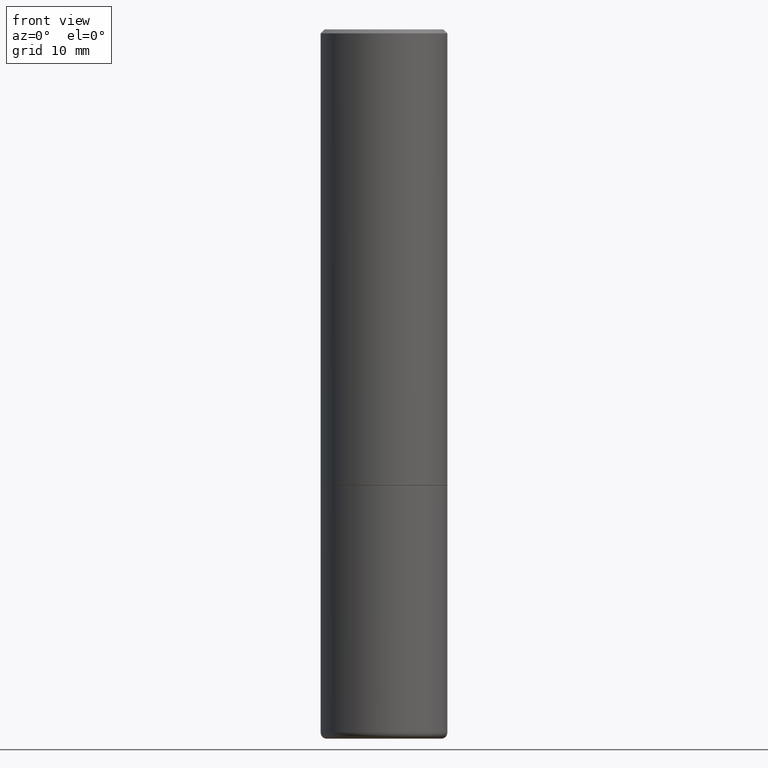
[diagram: clean part render]
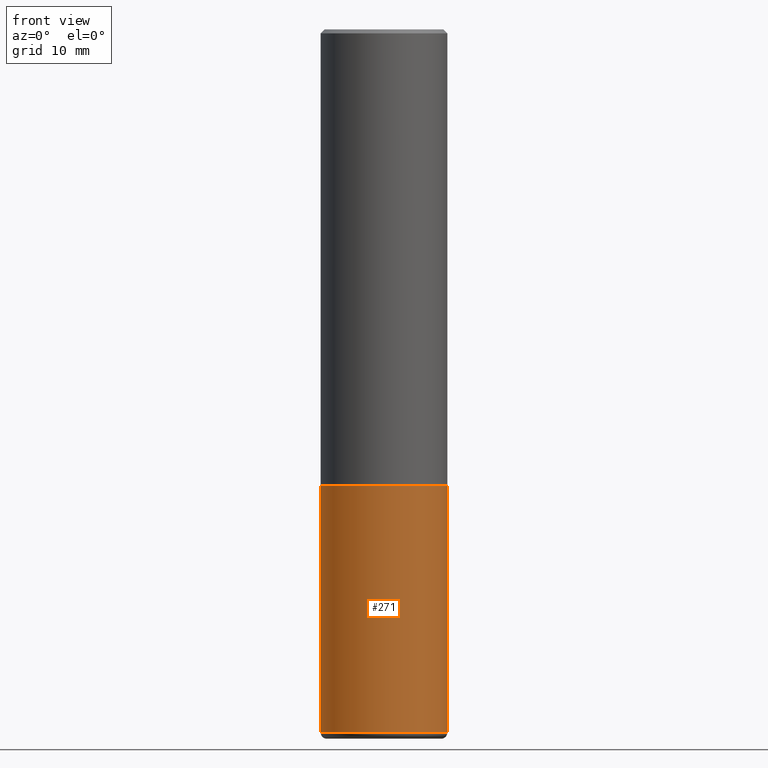
[diagram: same view with one face highlighted and labeled with its STEP entity id]
A machine part, front view. The second image highlights one B-rep face of the part: STEP entity #271.
In plain terms, the highlighted cylindrical surface (partial cylindrical patch) has radius 7.9375 mm, axis along (-0, 0, 1).
Its self-contained STEP definition (entity closure, byte-faithful):
#11 = EDGE_CURVE ( 'NONE', #253, #73, #372, .T. ) ;
#24 = EDGE_CURVE ( 'NONE', #73, #148, #282, .T. ) ;
#38 = AXIS2_PLACEMENT_3D ( 'NONE', #149, #42, #204 ) ;
#40 = LINE ( 'NONE', #176, #137 ) ;
#42 = DIRECTION ( 'NONE',  ( -2.445468806185136597E-29, 3.491481338843145583E-15, 1.000000000000000000 ) ) ;
#57 = CARTESIAN_POINT ( 'NONE',  ( -0.3125000000000000000, -7.765262354148530218E-15, -3.470041113957361922 ) ) ;
#71 = EDGE_LOOP ( 'NONE', ( #395, #216, #354, #283 ) ) ;
#72 = DIRECTION ( 'NONE',  ( -2.445468806185136877E-29, 3.491481338843145188E-15, 1.000000000000000000 ) ) ;
#73 = VERTEX_POINT ( 'NONE', #272 ) ;
#74 = CARTESIAN_POINT ( 'NONE',  ( 0.000000000000000000, 0.000000000000000000, 0.000000000000000000 ) ) ;
#101 = DIRECTION ( 'NONE',  ( 1.000000000000000000, -6.982962677686266711E-15, 4.876176775795936353E-29 ) ) ;
#128 = CIRCLE ( 'NONE', #401, 0.3125000000000000000 ) ;
#135 = DIRECTION ( 'NONE',  ( -2.445468806185136597E-29, 3.491481338843145583E-15, 1.000000000000000000 ) ) ;
#137 = VECTOR ( 'NONE', #72, 39.37007874015748143 ) ;
#140 = DIRECTION ( 'NONE',  ( -2.445468806185136877E-29, 3.491481338843145188E-15, 1.000000000000000000 ) ) ;
#148 = VERTEX_POINT ( 'NONE', #162 ) ;
#149 = CARTESIAN_POINT ( 'NONE',  ( 8.485877300362652309E-29, -1.211558379440060973E-14, -3.470041113957361922 ) ) ;
#162 = CARTESIAN_POINT ( 'NONE',  ( 0.3125000000000000000, -1.003800884917403364E-14, -2.249999999999999556 ) ) ;
#175 = VERTEX_POINT ( 'NONE', #402 ) ;
#176 = CARTESIAN_POINT ( 'NONE',  ( -0.3125000000000000000, 2.220446049250313081E-15, -1.537167215704658232E-29 ) ) ;
#204 = DIRECTION ( 'NONE',  ( 1.000000000000000000, -6.982962677686269077E-15, 0.000000000000000000 ) ) ;
#216 = ORIENTED_EDGE ( 'NONE', *, *, #11, .T. ) ;
#226 = CYLINDRICAL_SURFACE ( 'NONE', #260, 0.3125000000000000000 ) ;
#229 = EDGE_CURVE ( 'NONE', #175, #148, #128, .T. ) ;
#253 = VERTEX_POINT ( 'NONE', #57 ) ;
#260 = AXIS2_PLACEMENT_3D ( 'NONE', #74, #135, #101 ) ;
#271 = ADVANCED_FACE ( 'NONE', ( #371 ), #226, .T. ) ;
#272 = CARTESIAN_POINT ( 'NONE',  ( 0.3125000000000000000, -1.429775963117756807E-14, -3.470041113957361922 ) ) ;
#282 = LINE ( 'NONE', #312, #310 ) ;
#283 = ORIENTED_EDGE ( 'NONE', *, *, #229, .F. ) ;
#300 = CARTESIAN_POINT ( 'NONE',  ( 5.502304813916556222E-29, -7.855833012397075293E-15, -2.249999999999999556 ) ) ;
#301 = DIRECTION ( 'NONE',  ( -2.445468806185136597E-29, 3.491481338843145583E-15, 1.000000000000000000 ) ) ;
#310 = VECTOR ( 'NONE', #140, 39.37007874015748143 ) ;
#312 = CARTESIAN_POINT ( 'NONE',  ( 0.3125000000000000000, -2.182175836776958347E-15, 1.523805242436230075E-29 ) ) ;
#332 = DIRECTION ( 'NONE',  ( 1.000000000000000000, -6.982962677686265133E-15, 0.000000000000000000 ) ) ;
#354 = ORIENTED_EDGE ( 'NONE', *, *, #24, .T. ) ;
#371 = FACE_OUTER_BOUND ( 'NONE', #71, .T. ) ;
#372 = CIRCLE ( 'NONE', #38, 0.3125000000000000000 ) ;
#391 = EDGE_CURVE ( 'NONE', #253, #175, #40, .T. ) ;
#395 = ORIENTED_EDGE ( 'NONE', *, *, #391, .F. ) ;
#401 = AXIS2_PLACEMENT_3D ( 'NONE', #300, #301, #332 ) ;
#402 = CARTESIAN_POINT ( 'NONE',  ( -0.3125000000000000000, -7.765262354148530218E-15, -2.249999999999999556 ) ) ;